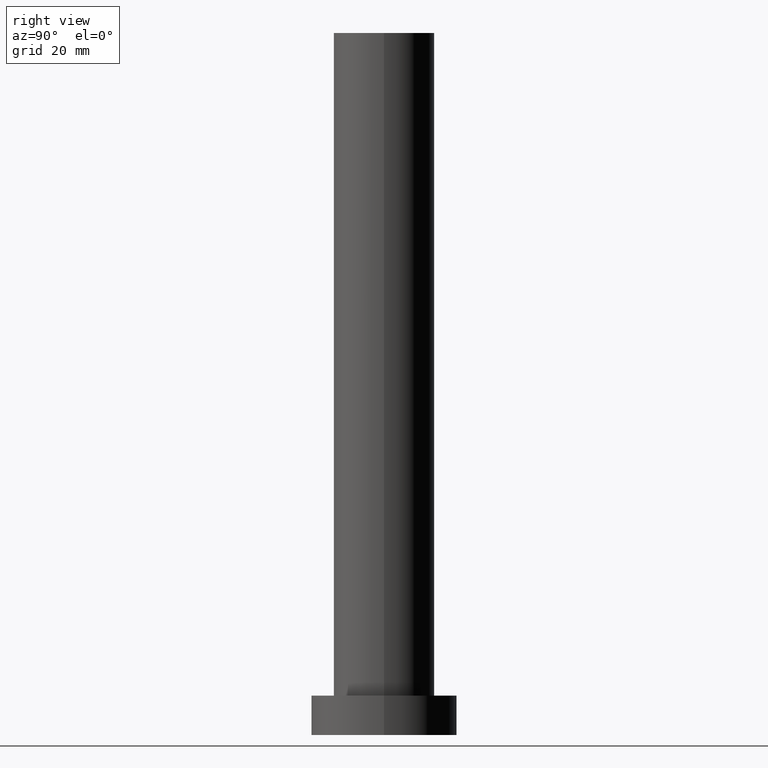
[diagram: clean part render]
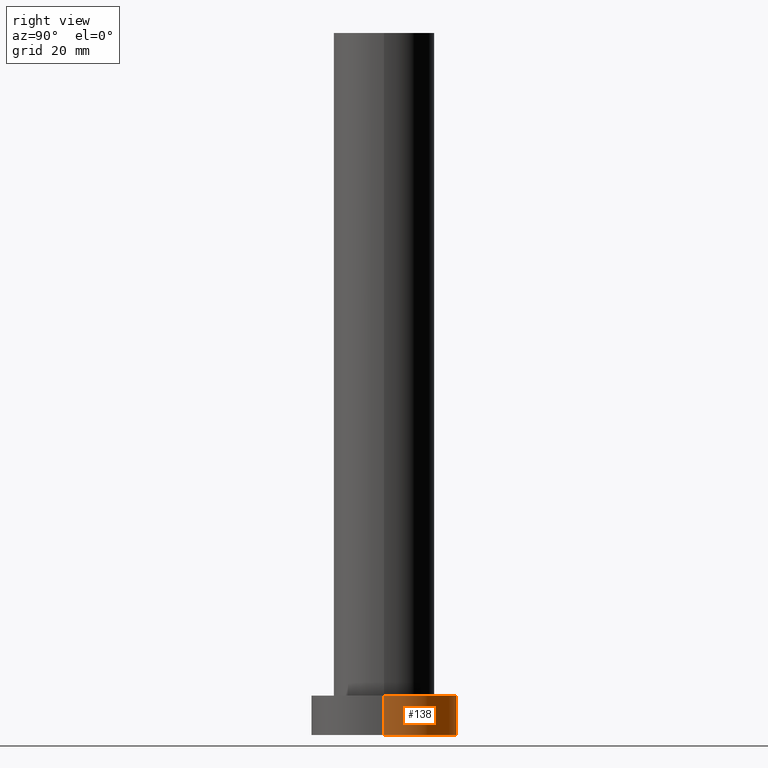
[diagram: same view with one face highlighted and labeled with its STEP entity id]
A machine part, right view. The second image highlights one B-rep face of the part: STEP entity #138.
In plain terms, the highlighted cylindrical surface (partial cylindrical patch) has radius 13 mm, axis along (-0, -0, -1).
Its self-contained STEP definition (entity closure, byte-faithful):
#1 = CARTESIAN_POINT ( 'NONE',  ( 0.000000000000000000, 0.000000000000000000, 0.000000000000000000 ) ) ;
#13 = ORIENTED_EDGE ( 'NONE', *, *, #211, .F. ) ;
#19 = LINE ( 'NONE', #101, #242 ) ;
#26 = EDGE_CURVE ( 'NONE', #87, #226, #209, .T. ) ;
#36 = DIRECTION ( 'NONE',  ( -0.000000000000000000, -0.000000000000000000, -1.000000000000000000 ) ) ;
#37 = CARTESIAN_POINT ( 'NONE',  ( -13.00000000000000178, 0.000000000000000000, 0.000000000000000000 ) ) ;
#38 = FACE_OUTER_BOUND ( 'NONE', #130, .T. ) ;
#51 = DIRECTION ( 'NONE',  ( 1.000000000000000000, 0.000000000000000000, 0.000000000000000000 ) ) ;
#68 = ORIENTED_EDGE ( 'NONE', *, *, #26, .T. ) ;
#75 = AXIS2_PLACEMENT_3D ( 'NONE', #1, #76, #213 ) ;
#76 = DIRECTION ( 'NONE',  ( 0.000000000000000000, 0.000000000000000000, 1.000000000000000000 ) ) ;
#81 = AXIS2_PLACEMENT_3D ( 'NONE', #143, #236, #215 ) ;
#87 = VERTEX_POINT ( 'NONE', #122 ) ;
#94 = EDGE_CURVE ( 'NONE', #226, #241, #252, .T. ) ;
#96 = AXIS2_PLACEMENT_3D ( 'NONE', #174, #232, #51 ) ;
#101 = CARTESIAN_POINT ( 'NONE',  ( -13.00000000000000178, 0.000000000000000000, 7.000000000000000000 ) ) ;
#108 = ORIENTED_EDGE ( 'NONE', *, *, #197, .F. ) ;
#122 = CARTESIAN_POINT ( 'NONE',  ( 13.00000000000000178, 1.592040838891559293E-15, 7.000000000000000000 ) ) ;
#130 = EDGE_LOOP ( 'NONE', ( #13, #68, #202, #108 ) ) ;
#138 = ADVANCED_FACE ( 'NONE', ( #38 ), #193, .T. ) ;
#142 = CIRCLE ( 'NONE', #96, 13.00000000000000178 ) ;
#143 = CARTESIAN_POINT ( 'NONE',  ( 0.000000000000000000, 0.000000000000000000, 7.000000000000000000 ) ) ;
#148 = CARTESIAN_POINT ( 'NONE',  ( -13.00000000000000178, 0.000000000000000000, 7.000000000000000000 ) ) ;
#172 = DIRECTION ( 'NONE',  ( -0.000000000000000000, -0.000000000000000000, -1.000000000000000000 ) ) ;
#174 = CARTESIAN_POINT ( 'NONE',  ( 0.000000000000000000, 0.000000000000000000, 7.000000000000000000 ) ) ;
#179 = VERTEX_POINT ( 'NONE', #148 ) ;
#189 = VECTOR ( 'NONE', #172, 1000.000000000000000 ) ;
#193 = CYLINDRICAL_SURFACE ( 'NONE', #81, 13.00000000000000178 ) ;
#197 = EDGE_CURVE ( 'NONE', #179, #241, #19, .T. ) ;
#202 = ORIENTED_EDGE ( 'NONE', *, *, #94, .T. ) ;
#209 = LINE ( 'NONE', #250, #189 ) ;
#210 = CARTESIAN_POINT ( 'NONE',  ( 13.00000000000000178, 1.592040838891559293E-15, 0.000000000000000000 ) ) ;
#211 = EDGE_CURVE ( 'NONE', #87, #179, #142, .T. ) ;
#213 = DIRECTION ( 'NONE',  ( 1.000000000000000000, 0.000000000000000000, 0.000000000000000000 ) ) ;
#215 = DIRECTION ( 'NONE',  ( -1.000000000000000000, 0.000000000000000000, 0.000000000000000000 ) ) ;
#226 = VERTEX_POINT ( 'NONE', #210 ) ;
#232 = DIRECTION ( 'NONE',  ( 0.000000000000000000, 0.000000000000000000, 1.000000000000000000 ) ) ;
#236 = DIRECTION ( 'NONE',  ( -0.000000000000000000, -0.000000000000000000, -1.000000000000000000 ) ) ;
#241 = VERTEX_POINT ( 'NONE', #37 ) ;
#242 = VECTOR ( 'NONE', #36, 1000.000000000000000 ) ;
#250 = CARTESIAN_POINT ( 'NONE',  ( 13.00000000000000178, 1.592040838891559293E-15, 7.000000000000000000 ) ) ;
#252 = CIRCLE ( 'NONE', #75, 13.00000000000000178 ) ;